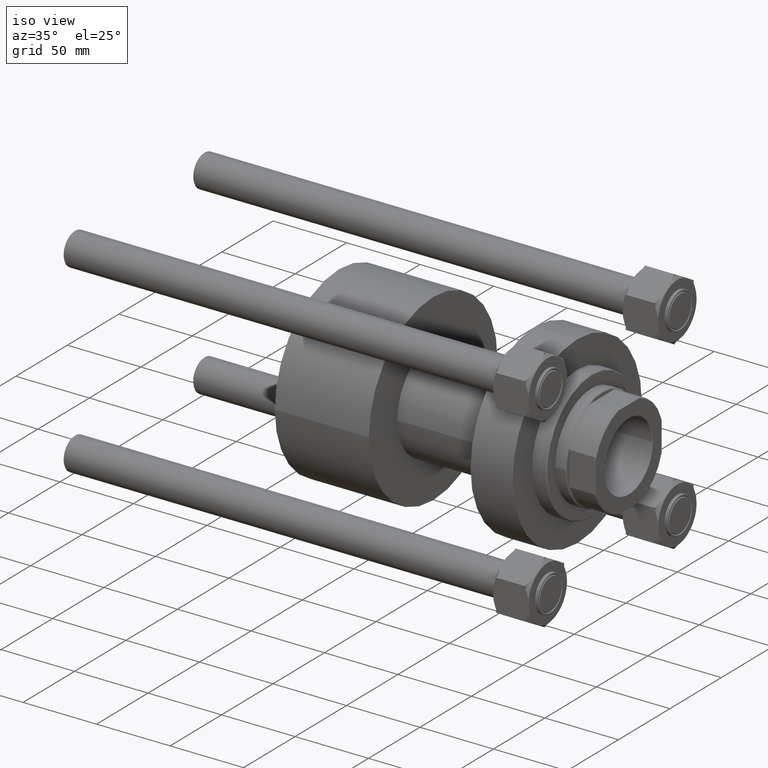
[diagram: clean part render]
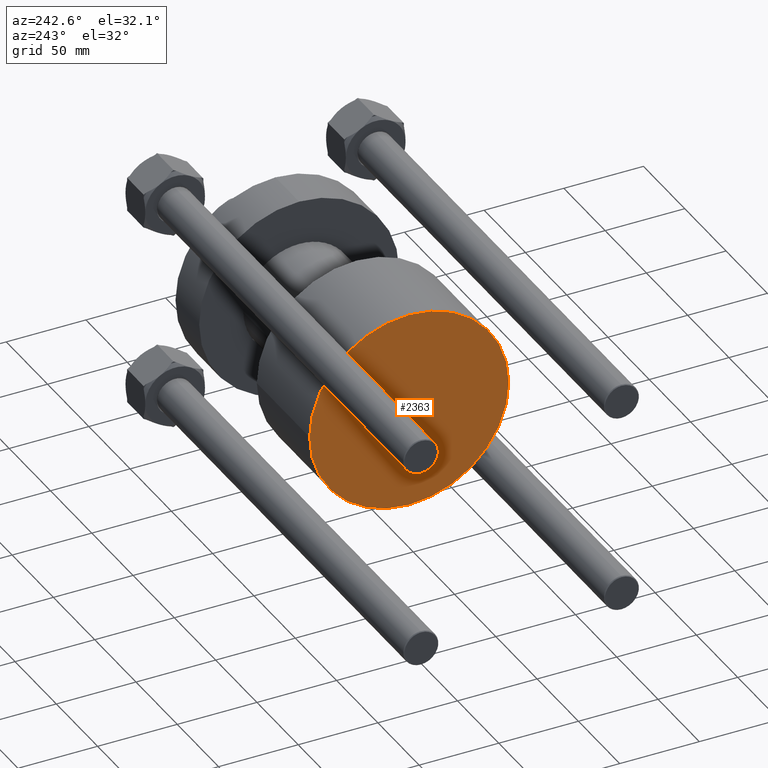
[diagram: tour spotlight — one face highlighted and labeled with its STEP entity id]
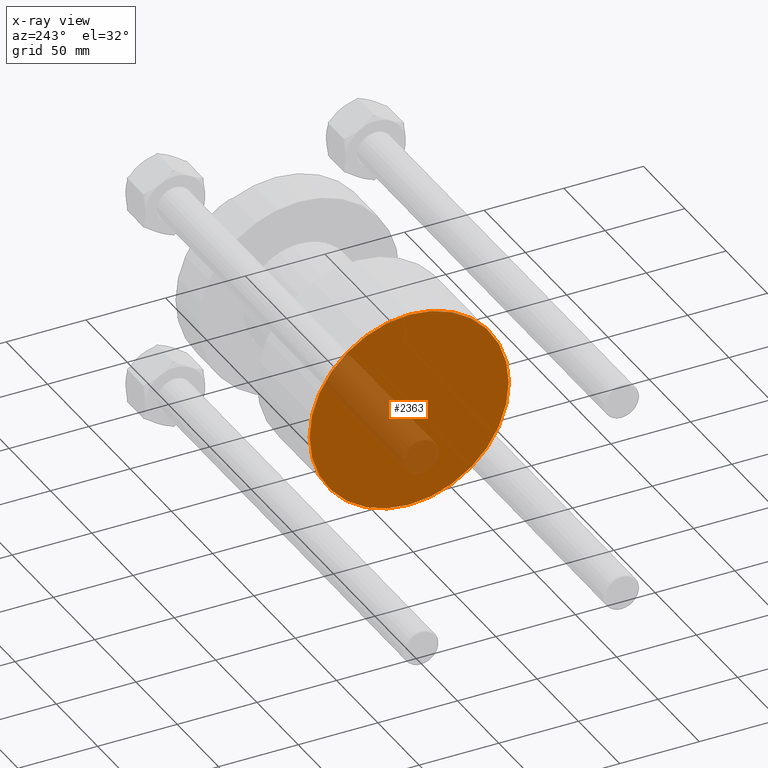
[diagram: x-ray of the same camera — body ghosted, this tour face saturated]
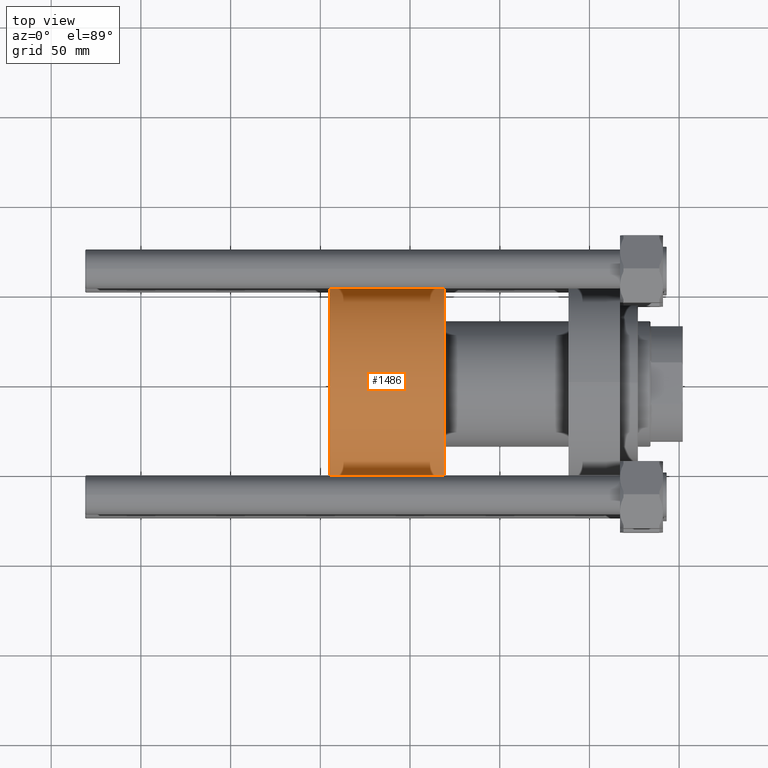
[diagram: tour spotlight — one face highlighted and labeled with its STEP entity id]
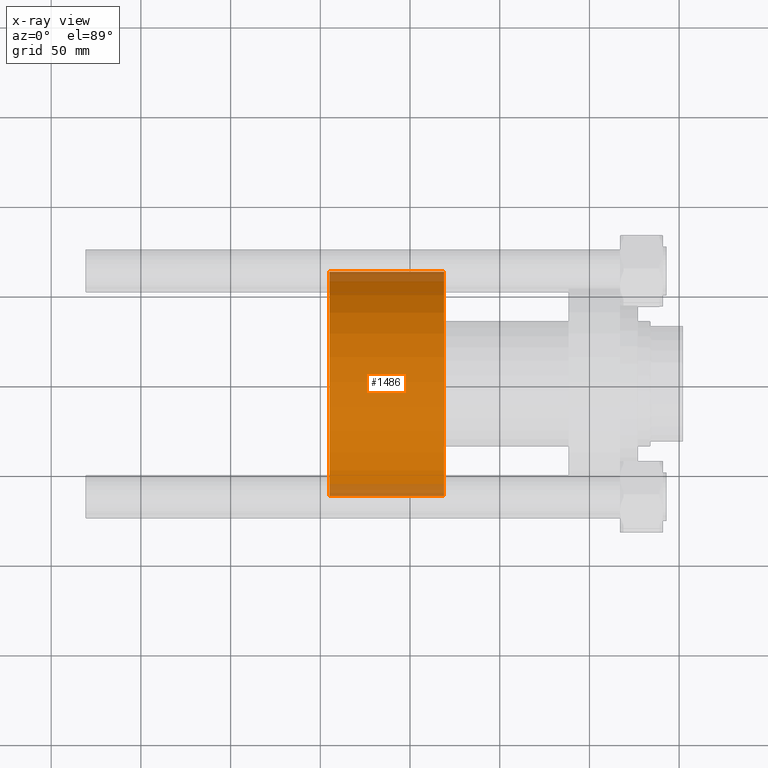
[diagram: x-ray of the same camera — body ghosted, this tour face saturated]
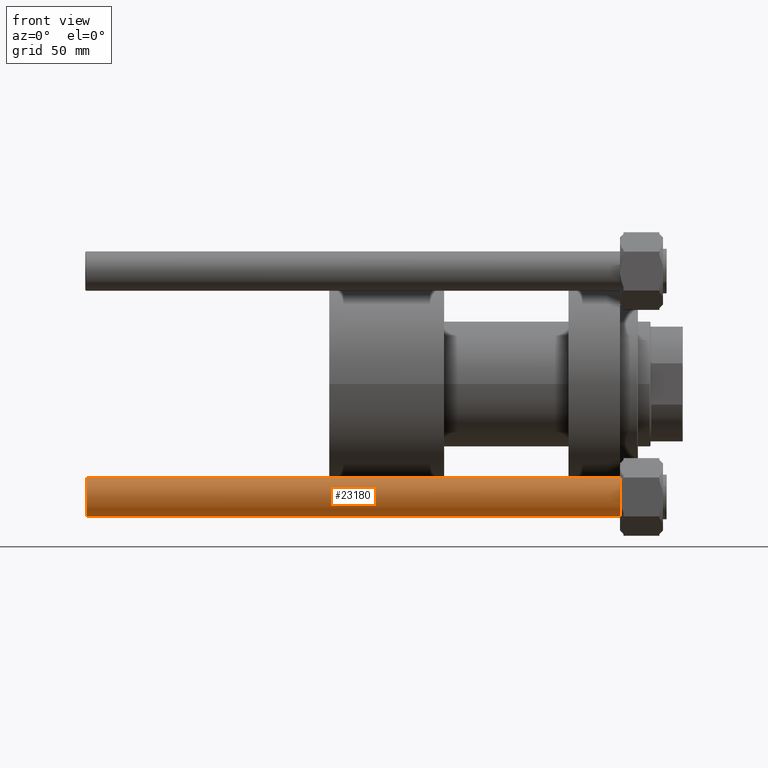
[diagram: tour spotlight — one face highlighted and labeled with its STEP entity id]
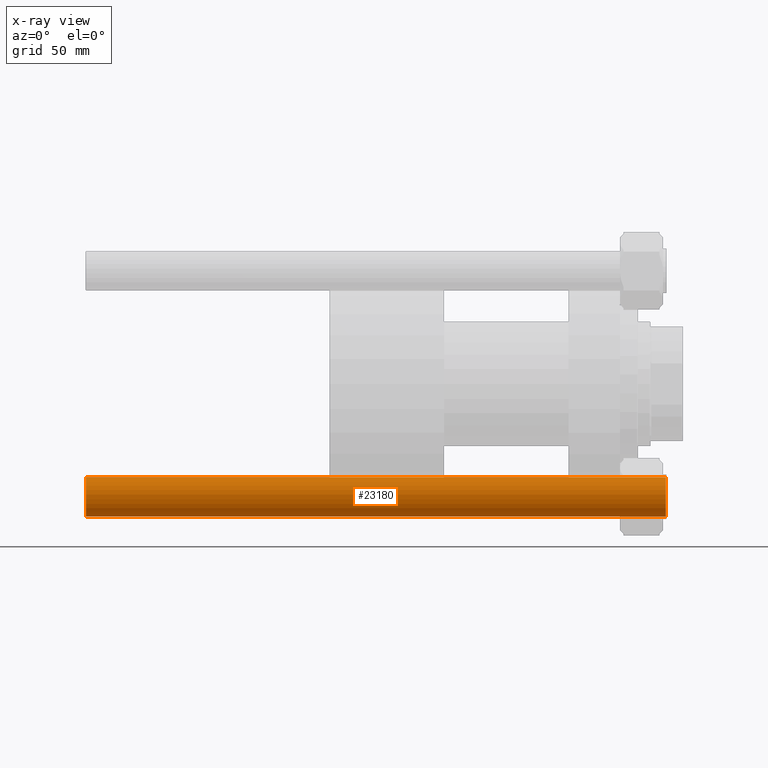
[diagram: x-ray of the same camera — body ghosted, this tour face saturated]
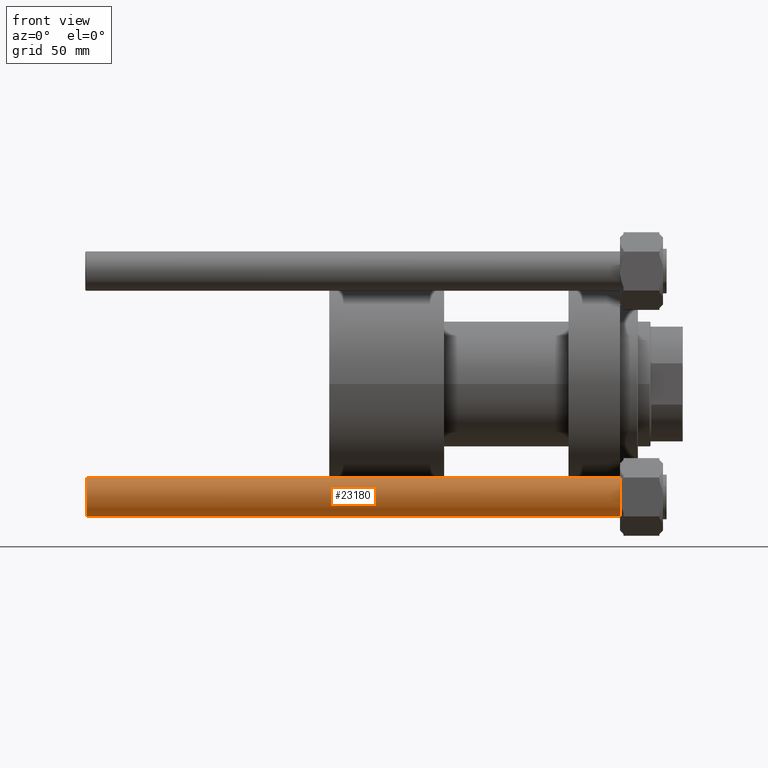
[diagram: tour spotlight — one face highlighted and labeled with its STEP entity id]
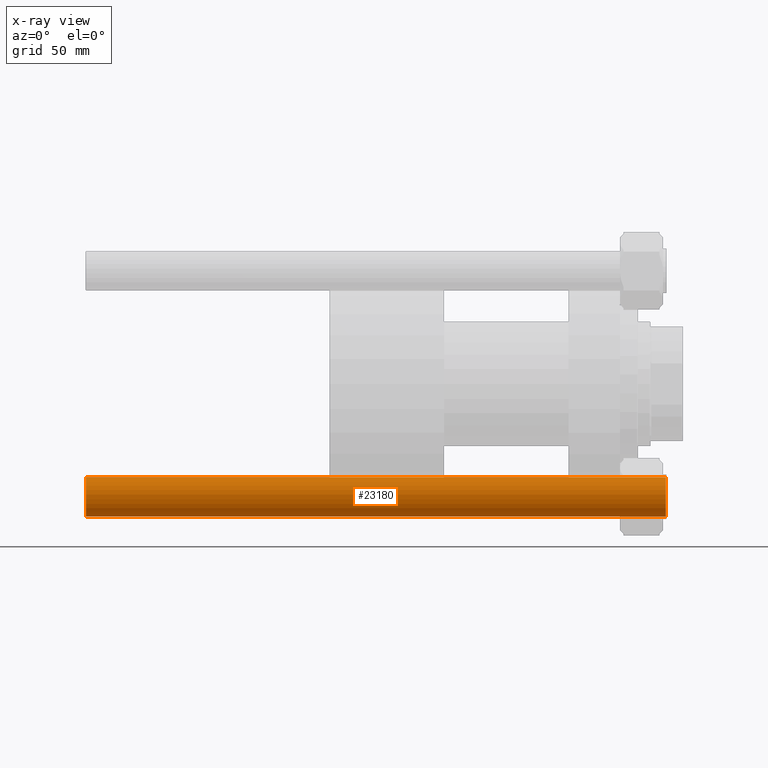
[diagram: x-ray of the same camera — body ghosted, this tour face saturated]
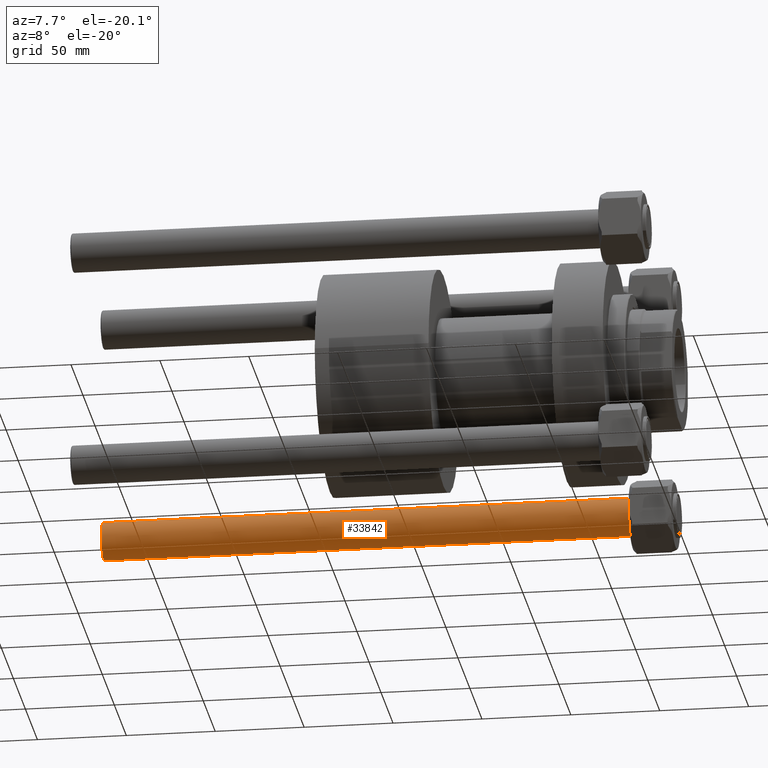
[diagram: tour spotlight — one face highlighted and labeled with its STEP entity id]
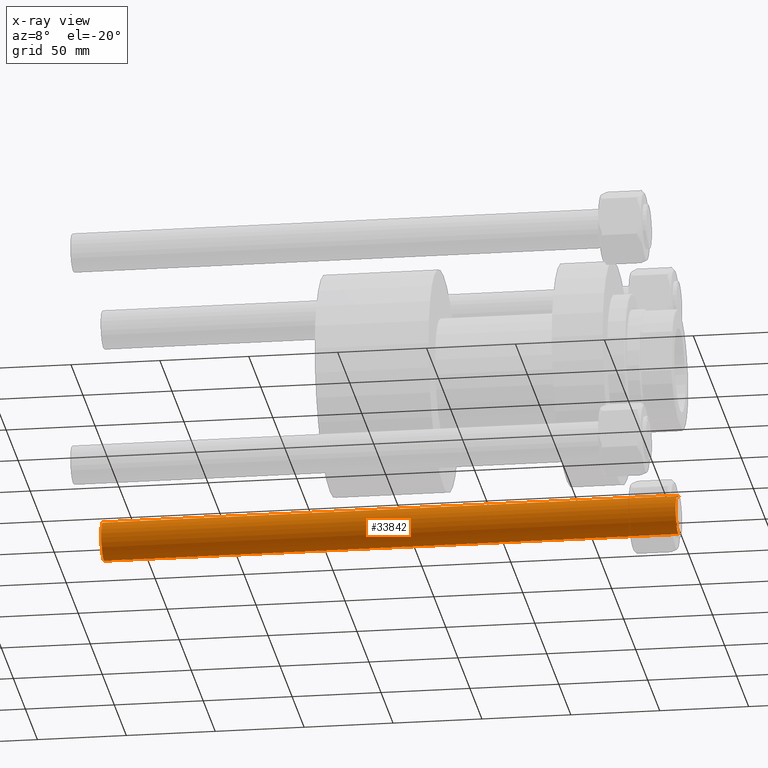
[diagram: x-ray of the same camera — body ghosted, this tour face saturated]
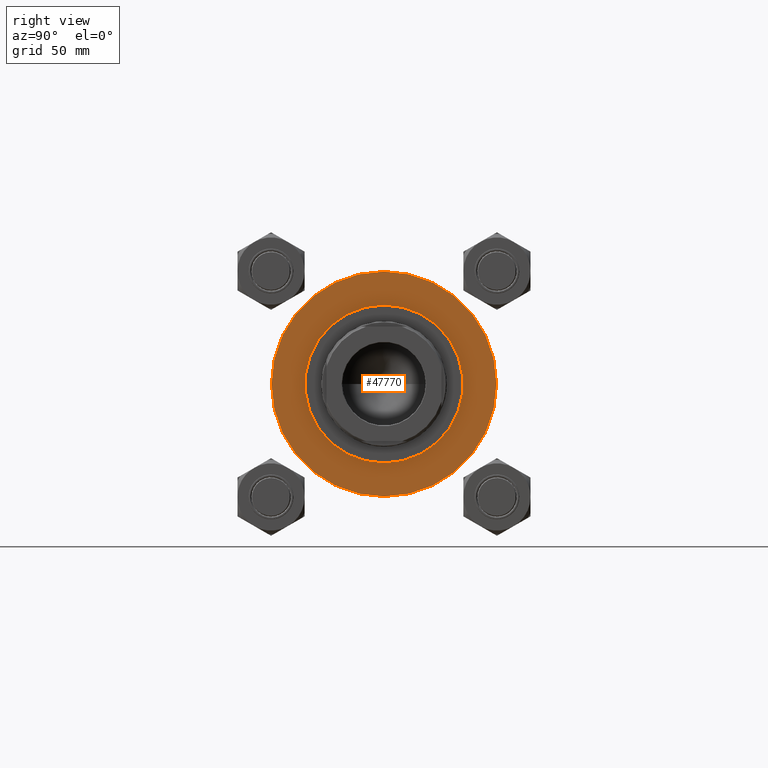
[diagram: tour spotlight — one face highlighted and labeled with its STEP entity id]
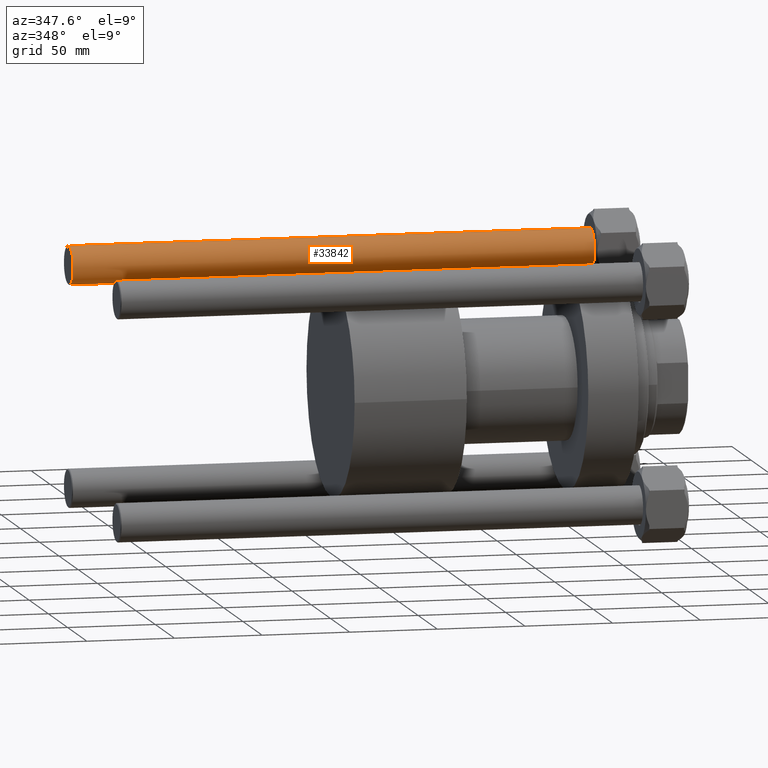
[diagram: tour spotlight — one face highlighted and labeled with its STEP entity id]
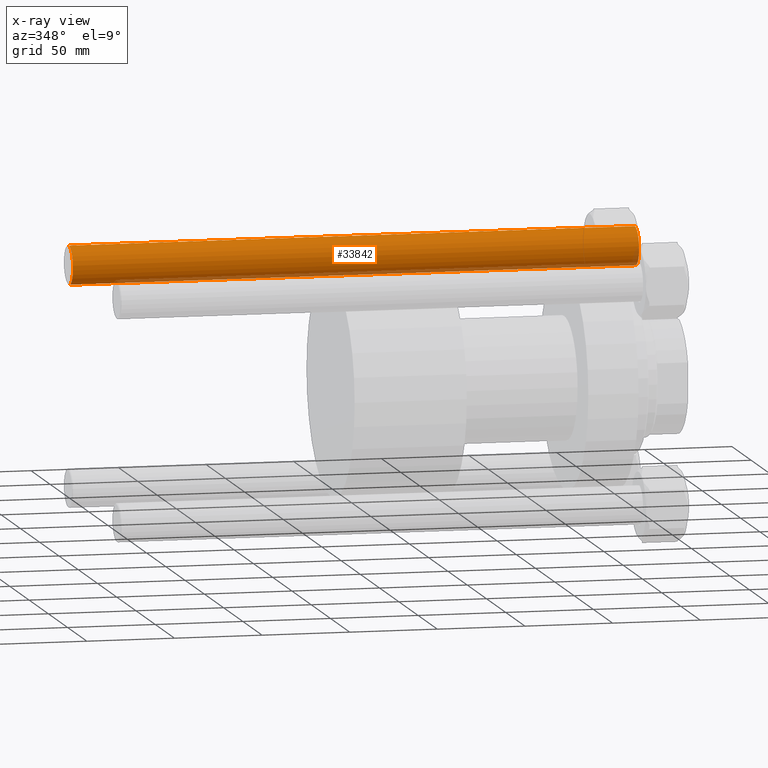
[diagram: x-ray of the same camera — body ghosted, this tour face saturated]
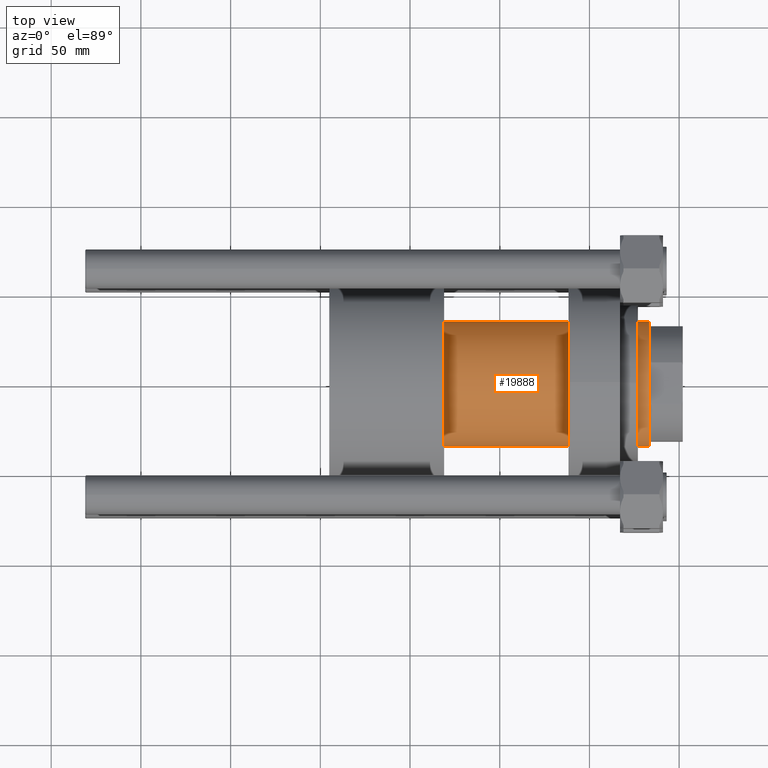
[diagram: tour spotlight — one face highlighted and labeled with its STEP entity id]
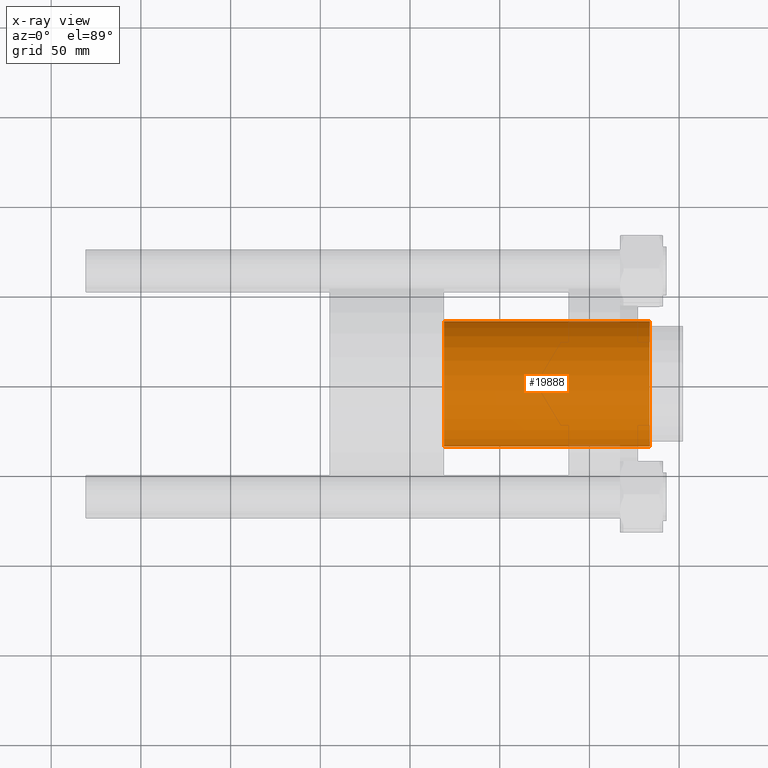
[diagram: x-ray of the same camera — body ghosted, this tour face saturated]
A machine part: a face-by-face anatomy tour. The part has 257 B-rep faces; the first image is the clean iso view, then the 8 largest visible faces are spotlighted one at a time (largest first), each with its STEP entity span.

Face 1 — auxiliary view, entity #2363. An x-ray twin of the same camera follows (body ghosted, this face saturated) — the face is partly hidden behind the body. In plain terms, the highlighted planar face has unit normal (1, 0, -0).
Definition (entity closure, byte-faithful):
#107 = ORIENTED_EDGE ( 'NONE', *, *, #46303, .F. ) ;
#2363 = ADVANCED_FACE ( 'NONE', ( #29940 ), #27900, .F. ) ;
#3160 = AXIS2_PLACEMENT_3D ( 'NONE', #26489, #41731, #22677 ) ;
#3337 = CIRCLE ( 'NONE', #38264, 62.50000000000000000 ) ;
#5008 = EDGE_CURVE ( 'NONE', #48850, #39118, #3337, .T. ) ;
#5529 = CARTESIAN_POINT ( 'NONE',  ( 62.50000000000000000, 7.654042494670957804E-15, 0.000000000000000000 ) ) ;
#21844 = CIRCLE ( 'NONE', #3160, 62.50000000000000000 ) ;
#22677 = DIRECTION ( 'NONE',  ( 1.000000000000000000, 0.000000000000000000, 0.000000000000000000 ) ) ;
#23836 = DIRECTION ( 'NONE',  ( 0.000000000000000000, 0.000000000000000000, 1.000000000000000000 ) ) ;
#24073 = CARTESIAN_POINT ( 'NONE',  ( 0.000000000000000000, 0.000000000000000000, 0.000000000000000000 ) ) ;
#26489 = CARTESIAN_POINT ( 'NONE',  ( 0.000000000000000000, 0.000000000000000000, 0.000000000000000000 ) ) ;
#27900 = PLANE ( 'NONE',  #45457 ) ;
#28057 = CARTESIAN_POINT ( 'NONE',  ( 0.000000000000000000, 0.000000000000000000, 0.000000000000000000 ) ) ;
#29940 = FACE_OUTER_BOUND ( 'NONE', #42200, .T. ) ;
#30062 = DIRECTION ( 'NONE',  ( 1.000000000000000000, 0.000000000000000000, 0.000000000000000000 ) ) ;
#38264 = AXIS2_PLACEMENT_3D ( 'NONE', #28057, #43539, #30062 ) ;
#39118 = VERTEX_POINT ( 'NONE', #5529 ) ;
#41731 = DIRECTION ( 'NONE',  ( 0.000000000000000000, 0.000000000000000000, 1.000000000000000000 ) ) ;
#41838 = CARTESIAN_POINT ( 'NONE',  ( -62.50000000000000000, 0.000000000000000000, 0.000000000000000000 ) ) ;
#42200 = EDGE_LOOP ( 'NONE', ( #48227, #107 ) ) ;
#42882 = DIRECTION ( 'NONE',  ( 1.000000000000000000, 0.000000000000000000, -0.000000000000000000 ) ) ;
#43539 = DIRECTION ( 'NONE',  ( 0.000000000000000000, 0.000000000000000000, 1.000000000000000000 ) ) ;
#45457 = AXIS2_PLACEMENT_3D ( 'NONE', #24073, #23836, #42882 ) ;
#46303 = EDGE_CURVE ( 'NONE', #39118, #48850, #21844, .T. ) ;
#48227 = ORIENTED_EDGE ( 'NONE', *, *, #5008, .F. ) ;
#48850 = VERTEX_POINT ( 'NONE', #41838 ) ;

Face 2 — top view, entity #1486. An x-ray twin of the same camera follows (body ghosted, this face saturated) — the face is partly hidden behind the body. In plain terms, the highlighted cylindrical surface (partial cylindrical patch) has radius 62.5 mm, axis along (-1, 0, 0).
Definition (entity closure, byte-faithful):
#1486 = ADVANCED_FACE ( 'NONE', ( #25493 ), #5653, .T. ) ;
#2285 = VERTEX_POINT ( 'NONE', #49248 ) ;
#3337 = CIRCLE ( 'NONE', #38264, 62.50000000000000000 ) ;
#4597 = CARTESIAN_POINT ( 'NONE',  ( 62.50000000000000000, 7.654042494670957804E-15, 64.00000000000000000 ) ) ;
#5008 = EDGE_CURVE ( 'NONE', #48850, #39118, #3337, .T. ) ;
#5148 = EDGE_LOOP ( 'NONE', ( #46023, #40842, #11603, #24333 ) ) ;
#5529 = CARTESIAN_POINT ( 'NONE',  ( 62.50000000000000000, 7.654042494670957804E-15, 0.000000000000000000 ) ) ;
#5653 = CYLINDRICAL_SURFACE ( 'NONE', #29193, 62.50000000000000000 ) ;
#8427 = LINE ( 'NONE', #4597, #18440 ) ;
#11329 = AXIS2_PLACEMENT_3D ( 'NONE', #36917, #37436, #29031 ) ;
#11603 = ORIENTED_EDGE ( 'NONE', *, *, #26921, .T. ) ;
#11978 = VECTOR ( 'NONE', #21378, 1000.000000000000000 ) ;
#12492 = EDGE_CURVE ( 'NONE', #39055, #39118, #8427, .T. ) ;
#13528 = CARTESIAN_POINT ( 'NONE',  ( 0.000000000000000000, 0.000000000000000000, 64.00000000000000000 ) ) ;
#14602 = CIRCLE ( 'NONE', #11329, 62.50000000000000000 ) ;
#16969 = DIRECTION ( 'NONE',  ( -0.000000000000000000, -0.000000000000000000, -1.000000000000000000 ) ) ;
#17059 = CARTESIAN_POINT ( 'NONE',  ( -62.50000000000000000, 0.000000000000000000, 64.00000000000000000 ) ) ;
#18440 = VECTOR ( 'NONE', #16969, 1000.000000000000000 ) ;
#20312 = CARTESIAN_POINT ( 'NONE',  ( 62.50000000000000000, 7.654042494670957804E-15, 64.00000000000000000 ) ) ;
#21378 = DIRECTION ( 'NONE',  ( -0.000000000000000000, -0.000000000000000000, -1.000000000000000000 ) ) ;
#24333 = ORIENTED_EDGE ( 'NONE', *, *, #5008, .T. ) ;
#25493 = FACE_OUTER_BOUND ( 'NONE', #5148, .T. ) ;
#26921 = EDGE_CURVE ( 'NONE', #2285, #48850, #40450, .T. ) ;
#28057 = CARTESIAN_POINT ( 'NONE',  ( 0.000000000000000000, 0.000000000000000000, 0.000000000000000000 ) ) ;
#29031 = DIRECTION ( 'NONE',  ( 1.000000000000000000, 0.000000000000000000, 0.000000000000000000 ) ) ;
#29047 = DIRECTION ( 'NONE',  ( -0.000000000000000000, -0.000000000000000000, -1.000000000000000000 ) ) ;
#29193 = AXIS2_PLACEMENT_3D ( 'NONE', #13528, #29047, #44540 ) ;
#30062 = DIRECTION ( 'NONE',  ( 1.000000000000000000, 0.000000000000000000, 0.000000000000000000 ) ) ;
#31615 = EDGE_CURVE ( 'NONE', #2285, #39055, #14602, .T. ) ;
#36917 = CARTESIAN_POINT ( 'NONE',  ( 0.000000000000000000, 0.000000000000000000, 64.00000000000000000 ) ) ;
#37436 = DIRECTION ( 'NONE',  ( 0.000000000000000000, 0.000000000000000000, 1.000000000000000000 ) ) ;
#38264 = AXIS2_PLACEMENT_3D ( 'NONE', #28057, #43539, #30062 ) ;
#39055 = VERTEX_POINT ( 'NONE', #20312 ) ;
#39118 = VERTEX_POINT ( 'NONE', #5529 ) ;
#40450 = LINE ( 'NONE', #17059, #11978 ) ;
#40842 = ORIENTED_EDGE ( 'NONE', *, *, #31615, .F. ) ;
#41838 = CARTESIAN_POINT ( 'NONE',  ( -62.50000000000000000, 0.000000000000000000, 0.000000000000000000 ) ) ;
#43539 = DIRECTION ( 'NONE',  ( 0.000000000000000000, 0.000000000000000000, 1.000000000000000000 ) ) ;
#44540 = DIRECTION ( 'NONE',  ( -1.000000000000000000, 0.000000000000000000, 0.000000000000000000 ) ) ;
#46023 = ORIENTED_EDGE ( 'NONE', *, *, #12492, .F. ) ;
#48850 = VERTEX_POINT ( 'NONE', #41838 ) ;
#49248 = CARTESIAN_POINT ( 'NONE',  ( -62.50000000000000000, 0.000000000000000000, 64.00000000000000000 ) ) ;

Face 3 — front view, entity #23180. An x-ray twin of the same camera follows (body ghosted, this face saturated) — the face is partly hidden behind the body. In plain terms, the highlighted cylindrical surface (edge-blend (fillet) strip) has radius 11 mm, axis along (1, -0, 0).
Definition (entity closure, byte-faithful):
#1008 = DIRECTION ( 'NONE',  ( -0.000000000000000000, -0.000000000000000000, 1.000000000000000000 ) ) ;
#1138 = EDGE_CURVE ( 'NONE', #49031, #11271, #41630, .T. ) ;
#1172 = DIRECTION ( 'NONE',  ( -1.000000000000000000, 0.000000000000000000, 0.000000000000000000 ) ) ;
#2385 = EDGE_CURVE ( 'NONE', #49698, #22311, #16676, .T. ) ;
#4022 = VECTOR ( 'NONE', #42386, 1000.000000000000000 ) ;
#4256 = DIRECTION ( 'NONE',  ( -0.000000000000000000, -0.000000000000000000, -1.000000000000000000 ) ) ;
#7233 = AXIS2_PLACEMENT_3D ( 'NONE', #20088, #1008, #35116 ) ;
#7757 = DIRECTION ( 'NONE',  ( 0.000000000000000000, 0.000000000000000000, -1.000000000000000000 ) ) ;
#8257 = CARTESIAN_POINT ( 'NONE',  ( 0.000000000000000000, 0.000000000000000000, 323.5000000000000000 ) ) ;
#11271 = VERTEX_POINT ( 'NONE', #28974 ) ;
#11633 = DIRECTION ( 'NONE',  ( -0.000000000000000000, -0.000000000000000000, -1.000000000000000000 ) ) ;
#11712 = CIRCLE ( 'NONE', #35264, 11.00000000000000000 ) ;
#13468 = CARTESIAN_POINT ( 'NONE',  ( -11.00000000000000000, 0.000000000000000000, 0.5000000000000559552 ) ) ;
#13890 = EDGE_CURVE ( 'NONE', #49698, #49031, #11712, .T. ) ;
#16676 = LINE ( 'NONE', #32195, #21101 ) ;
#17119 = ORIENTED_EDGE ( 'NONE', *, *, #1138, .T. ) ;
#17306 = ORIENTED_EDGE ( 'NONE', *, *, #13890, .T. ) ;
#20088 = CARTESIAN_POINT ( 'NONE',  ( 0.000000000000000000, 0.000000000000000000, 0.5000000000000559552 ) ) ;
#20512 = CYLINDRICAL_SURFACE ( 'NONE', #32164, 11.00000000000000000 ) ;
#21101 = VECTOR ( 'NONE', #11633, 1000.000000000000000 ) ;
#21127 = ORIENTED_EDGE ( 'NONE', *, *, #45595, .T. ) ;
#22311 = VERTEX_POINT ( 'NONE', #13468 ) ;
#23180 = ADVANCED_FACE ( 'NONE', ( #39841 ), #20512, .T. ) ;
#28974 = CARTESIAN_POINT ( 'NONE',  ( 11.00000000000000000, 1.347111479062088405E-15, 0.5000000000000559552 ) ) ;
#29326 = CARTESIAN_POINT ( 'NONE',  ( 11.00000000000000000, 1.347111479062088405E-15, 323.5000000000000000 ) ) ;
#32164 = AXIS2_PLACEMENT_3D ( 'NONE', #36019, #4256, #1172 ) ;
#32195 = CARTESIAN_POINT ( 'NONE',  ( -11.00000000000000000, 0.000000000000000000, 324.0000000000000000 ) ) ;
#32273 = CARTESIAN_POINT ( 'NONE',  ( -11.00000000000000000, 0.000000000000000000, 323.5000000000000000 ) ) ;
#35116 = DIRECTION ( 'NONE',  ( 1.000000000000000000, 0.000000000000000000, 0.000000000000000000 ) ) ;
#35264 = AXIS2_PLACEMENT_3D ( 'NONE', #8257, #7757, #39033 ) ;
#35656 = CIRCLE ( 'NONE', #7233, 11.00000000000000000 ) ;
#36019 = CARTESIAN_POINT ( 'NONE',  ( 0.000000000000000000, 0.000000000000000000, 324.0000000000000000 ) ) ;
#37563 = EDGE_LOOP ( 'NONE', ( #17306, #17119, #21127, #38385 ) ) ;
#38385 = ORIENTED_EDGE ( 'NONE', *, *, #2385, .F. ) ;
#39033 = DIRECTION ( 'NONE',  ( 1.000000000000000000, 0.000000000000000000, 0.000000000000000000 ) ) ;
#39841 = FACE_OUTER_BOUND ( 'NONE', #37563, .T. ) ;
#41630 = LINE ( 'NONE', #49240, #4022 ) ;
#42386 = DIRECTION ( 'NONE',  ( -0.000000000000000000, -0.000000000000000000, -1.000000000000000000 ) ) ;
#45595 = EDGE_CURVE ( 'NONE', #11271, #22311, #35656, .T. ) ;
#49031 = VERTEX_POINT ( 'NONE', #29326 ) ;
#49240 = CARTESIAN_POINT ( 'NONE',  ( 11.00000000000000000, 1.347111479062088405E-15, 324.0000000000000000 ) ) ;
#49698 = VERTEX_POINT ( 'NONE', #32273 ) ;

Face 4 — front view, entity #23180. An x-ray twin of the same camera follows (body ghosted, this face saturated) — the face is partly hidden behind the body. In plain terms, the highlighted cylindrical surface (edge-blend (fillet) strip) has radius 11 mm, axis along (-1, 0, 0).
Definition (entity closure, byte-faithful):
#1008 = DIRECTION ( 'NONE',  ( -0.000000000000000000, -0.000000000000000000, 1.000000000000000000 ) ) ;
#1138 = EDGE_CURVE ( 'NONE', #49031, #11271, #41630, .T. ) ;
#1172 = DIRECTION ( 'NONE',  ( -1.000000000000000000, 0.000000000000000000, 0.000000000000000000 ) ) ;
#2385 = EDGE_CURVE ( 'NONE', #49698, #22311, #16676, .T. ) ;
#4022 = VECTOR ( 'NONE', #42386, 1000.000000000000000 ) ;
#4256 = DIRECTION ( 'NONE',  ( -0.000000000000000000, -0.000000000000000000, -1.000000000000000000 ) ) ;
#7233 = AXIS2_PLACEMENT_3D ( 'NONE', #20088, #1008, #35116 ) ;
#7757 = DIRECTION ( 'NONE',  ( 0.000000000000000000, 0.000000000000000000, -1.000000000000000000 ) ) ;
#8257 = CARTESIAN_POINT ( 'NONE',  ( 0.000000000000000000, 0.000000000000000000, 323.5000000000000000 ) ) ;
#11271 = VERTEX_POINT ( 'NONE', #28974 ) ;
#11633 = DIRECTION ( 'NONE',  ( -0.000000000000000000, -0.000000000000000000, -1.000000000000000000 ) ) ;
#11712 = CIRCLE ( 'NONE', #35264, 11.00000000000000000 ) ;
#13468 = CARTESIAN_POINT ( 'NONE',  ( -11.00000000000000000, 0.000000000000000000, 0.5000000000000559552 ) ) ;
#13890 = EDGE_CURVE ( 'NONE', #49698, #49031, #11712, .T. ) ;
#16676 = LINE ( 'NONE', #32195, #21101 ) ;
#17119 = ORIENTED_EDGE ( 'NONE', *, *, #1138, .T. ) ;
#17306 = ORIENTED_EDGE ( 'NONE', *, *, #13890, .T. ) ;
#20088 = CARTESIAN_POINT ( 'NONE',  ( 0.000000000000000000, 0.000000000000000000, 0.5000000000000559552 ) ) ;
#20512 = CYLINDRICAL_SURFACE ( 'NONE', #32164, 11.00000000000000000 ) ;
#21101 = VECTOR ( 'NONE', #11633, 1000.000000000000000 ) ;
#21127 = ORIENTED_EDGE ( 'NONE', *, *, #45595, .T. ) ;
#22311 = VERTEX_POINT ( 'NONE', #13468 ) ;
#23180 = ADVANCED_FACE ( 'NONE', ( #39841 ), #20512, .T. ) ;
#28974 = CARTESIAN_POINT ( 'NONE',  ( 11.00000000000000000, 1.347111479062088405E-15, 0.5000000000000559552 ) ) ;
#29326 = CARTESIAN_POINT ( 'NONE',  ( 11.00000000000000000, 1.347111479062088405E-15, 323.5000000000000000 ) ) ;
#32164 = AXIS2_PLACEMENT_3D ( 'NONE', #36019, #4256, #1172 ) ;
#32195 = CARTESIAN_POINT ( 'NONE',  ( -11.00000000000000000, 0.000000000000000000, 324.0000000000000000 ) ) ;
#32273 = CARTESIAN_POINT ( 'NONE',  ( -11.00000000000000000, 0.000000000000000000, 323.5000000000000000 ) ) ;
#35116 = DIRECTION ( 'NONE',  ( 1.000000000000000000, 0.000000000000000000, 0.000000000000000000 ) ) ;
#35264 = AXIS2_PLACEMENT_3D ( 'NONE', #8257, #7757, #39033 ) ;
#35656 = CIRCLE ( 'NONE', #7233, 11.00000000000000000 ) ;
#36019 = CARTESIAN_POINT ( 'NONE',  ( 0.000000000000000000, 0.000000000000000000, 324.0000000000000000 ) ) ;
#37563 = EDGE_LOOP ( 'NONE', ( #17306, #17119, #21127, #38385 ) ) ;
#38385 = ORIENTED_EDGE ( 'NONE', *, *, #2385, .F. ) ;
#39033 = DIRECTION ( 'NONE',  ( 1.000000000000000000, 0.000000000000000000, 0.000000000000000000 ) ) ;
#39841 = FACE_OUTER_BOUND ( 'NONE', #37563, .T. ) ;
#41630 = LINE ( 'NONE', #49240, #4022 ) ;
#42386 = DIRECTION ( 'NONE',  ( -0.000000000000000000, -0.000000000000000000, -1.000000000000000000 ) ) ;
#45595 = EDGE_CURVE ( 'NONE', #11271, #22311, #35656, .T. ) ;
#49031 = VERTEX_POINT ( 'NONE', #29326 ) ;
#49240 = CARTESIAN_POINT ( 'NONE',  ( 11.00000000000000000, 1.347111479062088405E-15, 324.0000000000000000 ) ) ;
#49698 = VERTEX_POINT ( 'NONE', #32273 ) ;

Face 5 — auxiliary view, entity #33842. An x-ray twin of the same camera follows (body ghosted, this face saturated) — the face is partly hidden behind the body. In plain terms, the highlighted cylindrical surface (edge-blend (fillet) strip) has radius 11 mm, axis along (1, 0, -0).
Definition (entity closure, byte-faithful):
#1138 = EDGE_CURVE ( 'NONE', #49031, #11271, #41630, .T. ) ;
#2385 = EDGE_CURVE ( 'NONE', #49698, #22311, #16676, .T. ) ;
#4022 = VECTOR ( 'NONE', #42386, 1000.000000000000000 ) ;
#4146 = DIRECTION ( 'NONE',  ( 1.000000000000000000, 0.000000000000000000, 0.000000000000000000 ) ) ;
#6423 = CARTESIAN_POINT ( 'NONE',  ( 0.000000000000000000, 0.000000000000000000, 323.5000000000000000 ) ) ;
#11271 = VERTEX_POINT ( 'NONE', #28974 ) ;
#11633 = DIRECTION ( 'NONE',  ( -0.000000000000000000, -0.000000000000000000, -1.000000000000000000 ) ) ;
#12903 = AXIS2_PLACEMENT_3D ( 'NONE', #42056, #49939, #15119 ) ;
#13468 = CARTESIAN_POINT ( 'NONE',  ( -11.00000000000000000, 0.000000000000000000, 0.5000000000000559552 ) ) ;
#13540 = DIRECTION ( 'NONE',  ( 0.000000000000000000, 0.000000000000000000, -1.000000000000000000 ) ) ;
#15119 = DIRECTION ( 'NONE',  ( -1.000000000000000000, 0.000000000000000000, 0.000000000000000000 ) ) ;
#16676 = LINE ( 'NONE', #32195, #21101 ) ;
#18559 = AXIS2_PLACEMENT_3D ( 'NONE', #47343, #43522, #4146 ) ;
#21101 = VECTOR ( 'NONE', #11633, 1000.000000000000000 ) ;
#22311 = VERTEX_POINT ( 'NONE', #13468 ) ;
#23529 = ORIENTED_EDGE ( 'NONE', *, *, #1138, .F. ) ;
#28974 = CARTESIAN_POINT ( 'NONE',  ( 11.00000000000000000, 1.347111479062088405E-15, 0.5000000000000559552 ) ) ;
#29318 = DIRECTION ( 'NONE',  ( 1.000000000000000000, 0.000000000000000000, 0.000000000000000000 ) ) ;
#29326 = CARTESIAN_POINT ( 'NONE',  ( 11.00000000000000000, 1.347111479062088405E-15, 323.5000000000000000 ) ) ;
#29846 = AXIS2_PLACEMENT_3D ( 'NONE', #6423, #13540, #29318 ) ;
#32195 = CARTESIAN_POINT ( 'NONE',  ( -11.00000000000000000, 0.000000000000000000, 324.0000000000000000 ) ) ;
#32273 = CARTESIAN_POINT ( 'NONE',  ( -11.00000000000000000, 0.000000000000000000, 323.5000000000000000 ) ) ;
#33842 = ADVANCED_FACE ( 'NONE', ( #38015 ), #50183, .T. ) ;
#34787 = CIRCLE ( 'NONE', #18559, 11.00000000000000000 ) ;
#35155 = EDGE_LOOP ( 'NONE', ( #23529, #44065, #37127, #47528 ) ) ;
#37127 = ORIENTED_EDGE ( 'NONE', *, *, #2385, .T. ) ;
#38015 = FACE_OUTER_BOUND ( 'NONE', #35155, .T. ) ;
#38783 = CIRCLE ( 'NONE', #29846, 11.00000000000000000 ) ;
#41630 = LINE ( 'NONE', #49240, #4022 ) ;
#42056 = CARTESIAN_POINT ( 'NONE',  ( 0.000000000000000000, 0.000000000000000000, 324.0000000000000000 ) ) ;
#42386 = DIRECTION ( 'NONE',  ( -0.000000000000000000, -0.000000000000000000, -1.000000000000000000 ) ) ;
#43092 = EDGE_CURVE ( 'NONE', #49031, #49698, #38783, .T. ) ;
#43522 = DIRECTION ( 'NONE',  ( -0.000000000000000000, -0.000000000000000000, 1.000000000000000000 ) ) ;
#44065 = ORIENTED_EDGE ( 'NONE', *, *, #43092, .T. ) ;
#45292 = EDGE_CURVE ( 'NONE', #22311, #11271, #34787, .T. ) ;
#47343 = CARTESIAN_POINT ( 'NONE',  ( 0.000000000000000000, 0.000000000000000000, 0.5000000000000559552 ) ) ;
#47528 = ORIENTED_EDGE ( 'NONE', *, *, #45292, .T. ) ;
#49031 = VERTEX_POINT ( 'NONE', #29326 ) ;
#49240 = CARTESIAN_POINT ( 'NONE',  ( 11.00000000000000000, 1.347111479062088405E-15, 324.0000000000000000 ) ) ;
#49698 = VERTEX_POINT ( 'NONE', #32273 ) ;
#49939 = DIRECTION ( 'NONE',  ( -0.000000000000000000, -0.000000000000000000, -1.000000000000000000 ) ) ;
#50183 = CYLINDRICAL_SURFACE ( 'NONE', #12903, 11.00000000000000000 ) ;

Face 6 — right view, entity #47770. In plain terms, the highlighted planar face has unit normal (1, 0, -0).
Definition (entity closure, byte-faithful):
#218 = DIRECTION ( 'NONE',  ( 1.000000000000000000, 0.000000000000000000, 0.000000000000000000 ) ) ;
#413 = DIRECTION ( 'NONE',  ( 1.000000000000000000, 0.000000000000000000, 0.000000000000000000 ) ) ;
#647 = AXIS2_PLACEMENT_3D ( 'NONE', #43506, #13000, #20385 ) ;
#2652 = ORIENTED_EDGE ( 'NONE', *, *, #43194, .F. ) ;
#4696 = EDGE_LOOP ( 'NONE', ( #30649, #2652 ) ) ;
#5223 = DIRECTION ( 'NONE',  ( 1.000000000000000000, 0.000000000000000000, -0.000000000000000000 ) ) ;
#5721 = PLANE ( 'NONE',  #13778 ) ;
#7464 = CARTESIAN_POINT ( 'NONE',  ( -44.00000000000000000, 0.000000000000000000, 28.69999999999999929 ) ) ;
#9677 = CIRCLE ( 'NONE', #16183, 44.00000000000000000 ) ;
#10599 = DIRECTION ( 'NONE',  ( 1.000000000000000000, 0.000000000000000000, 0.000000000000000000 ) ) ;
#11087 = VERTEX_POINT ( 'NONE', #7464 ) ;
#11287 = AXIS2_PLACEMENT_3D ( 'NONE', #23128, #45993, #218 ) ;
#13000 = DIRECTION ( 'NONE',  ( 0.000000000000000000, 0.000000000000000000, 1.000000000000000000 ) ) ;
#13778 = AXIS2_PLACEMENT_3D ( 'NONE', #37006, #29117, #5223 ) ;
#15075 = VERTEX_POINT ( 'NONE', #41230 ) ;
#15202 = EDGE_LOOP ( 'NONE', ( #24465, #34559 ) ) ;
#16183 = AXIS2_PLACEMENT_3D ( 'NONE', #30701, #50010, #413 ) ;
#20286 = CIRCLE ( 'NONE', #29092, 62.75000000000000000 ) ;
#20385 = DIRECTION ( 'NONE',  ( 1.000000000000000000, 0.000000000000000000, 0.000000000000000000 ) ) ;
#23128 = CARTESIAN_POINT ( 'NONE',  ( 0.000000000000000000, 0.000000000000000000, 28.69999999999999929 ) ) ;
#24221 = CIRCLE ( 'NONE', #647, 44.00000000000000000 ) ;
#24465 = ORIENTED_EDGE ( 'NONE', *, *, #33623, .T. ) ;
#28326 = VERTEX_POINT ( 'NONE', #46810 ) ;
#28871 = FACE_OUTER_BOUND ( 'NONE', #15202, .T. ) ;
#29092 = AXIS2_PLACEMENT_3D ( 'NONE', #29920, #33492, #10599 ) ;
#29117 = DIRECTION ( 'NONE',  ( 0.000000000000000000, 0.000000000000000000, 1.000000000000000000 ) ) ;
#29920 = CARTESIAN_POINT ( 'NONE',  ( 0.000000000000000000, 0.000000000000000000, 28.69999999999999929 ) ) ;
#30649 = ORIENTED_EDGE ( 'NONE', *, *, #34870, .F. ) ;
#30701 = CARTESIAN_POINT ( 'NONE',  ( 0.000000000000000000, 0.000000000000000000, 28.69999999999999929 ) ) ;
#32390 = EDGE_CURVE ( 'NONE', #15075, #43269, #20286, .T. ) ;
#32691 = FACE_BOUND ( 'NONE', #4696, .T. ) ;
#33492 = DIRECTION ( 'NONE',  ( 0.000000000000000000, 0.000000000000000000, 1.000000000000000000 ) ) ;
#33623 = EDGE_CURVE ( 'NONE', #43269, #15075, #44534, .T. ) ;
#34559 = ORIENTED_EDGE ( 'NONE', *, *, #32390, .T. ) ;
#34870 = EDGE_CURVE ( 'NONE', #11087, #28326, #9677, .T. ) ;
#37006 = CARTESIAN_POINT ( 'NONE',  ( 0.000000000000000000, 0.000000000000000000, 28.69999999999999929 ) ) ;
#39230 = CARTESIAN_POINT ( 'NONE',  ( -62.75000000000000000, 0.000000000000000000, 28.69999999999999929 ) ) ;
#41230 = CARTESIAN_POINT ( 'NONE',  ( 62.75000000000000000, 7.684658664649641591E-15, 28.69999999999999929 ) ) ;
#43194 = EDGE_CURVE ( 'NONE', #28326, #11087, #24221, .T. ) ;
#43269 = VERTEX_POINT ( 'NONE', #39230 ) ;
#43506 = CARTESIAN_POINT ( 'NONE',  ( 0.000000000000000000, 0.000000000000000000, 28.69999999999999929 ) ) ;
#44534 = CIRCLE ( 'NONE', #11287, 62.75000000000000000 ) ;
#45993 = DIRECTION ( 'NONE',  ( 0.000000000000000000, 0.000000000000000000, 1.000000000000000000 ) ) ;
#46810 = CARTESIAN_POINT ( 'NONE',  ( 44.00000000000000000, 5.388445916248353619E-15, 28.69999999999999929 ) ) ;
#47770 = ADVANCED_FACE ( 'NONE', ( #32691, #28871 ), #5721, .T. ) ;
#50010 = DIRECTION ( 'NONE',  ( 0.000000000000000000, 0.000000000000000000, 1.000000000000000000 ) ) ;

Face 7 — auxiliary view, entity #33842. An x-ray twin of the same camera follows (body ghosted, this face saturated) — the face is partly hidden behind the body. In plain terms, the highlighted cylindrical surface (edge-blend (fillet) strip) has radius 11 mm, axis along (-1, -0, -0).
Definition (entity closure, byte-faithful):
#1138 = EDGE_CURVE ( 'NONE', #49031, #11271, #41630, .T. ) ;
#2385 = EDGE_CURVE ( 'NONE', #49698, #22311, #16676, .T. ) ;
#4022 = VECTOR ( 'NONE', #42386, 1000.000000000000000 ) ;
#4146 = DIRECTION ( 'NONE',  ( 1.000000000000000000, 0.000000000000000000, 0.000000000000000000 ) ) ;
#6423 = CARTESIAN_POINT ( 'NONE',  ( 0.000000000000000000, 0.000000000000000000, 323.5000000000000000 ) ) ;
#11271 = VERTEX_POINT ( 'NONE', #28974 ) ;
#11633 = DIRECTION ( 'NONE',  ( -0.000000000000000000, -0.000000000000000000, -1.000000000000000000 ) ) ;
#12903 = AXIS2_PLACEMENT_3D ( 'NONE', #42056, #49939, #15119 ) ;
#13468 = CARTESIAN_POINT ( 'NONE',  ( -11.00000000000000000, 0.000000000000000000, 0.5000000000000559552 ) ) ;
#13540 = DIRECTION ( 'NONE',  ( 0.000000000000000000, 0.000000000000000000, -1.000000000000000000 ) ) ;
#15119 = DIRECTION ( 'NONE',  ( -1.000000000000000000, 0.000000000000000000, 0.000000000000000000 ) ) ;
#16676 = LINE ( 'NONE', #32195, #21101 ) ;
#18559 = AXIS2_PLACEMENT_3D ( 'NONE', #47343, #43522, #4146 ) ;
#21101 = VECTOR ( 'NONE', #11633, 1000.000000000000000 ) ;
#22311 = VERTEX_POINT ( 'NONE', #13468 ) ;
#23529 = ORIENTED_EDGE ( 'NONE', *, *, #1138, .F. ) ;
#28974 = CARTESIAN_POINT ( 'NONE',  ( 11.00000000000000000, 1.347111479062088405E-15, 0.5000000000000559552 ) ) ;
#29318 = DIRECTION ( 'NONE',  ( 1.000000000000000000, 0.000000000000000000, 0.000000000000000000 ) ) ;
#29326 = CARTESIAN_POINT ( 'NONE',  ( 11.00000000000000000, 1.347111479062088405E-15, 323.5000000000000000 ) ) ;
#29846 = AXIS2_PLACEMENT_3D ( 'NONE', #6423, #13540, #29318 ) ;
#32195 = CARTESIAN_POINT ( 'NONE',  ( -11.00000000000000000, 0.000000000000000000, 324.0000000000000000 ) ) ;
#32273 = CARTESIAN_POINT ( 'NONE',  ( -11.00000000000000000, 0.000000000000000000, 323.5000000000000000 ) ) ;
#33842 = ADVANCED_FACE ( 'NONE', ( #38015 ), #50183, .T. ) ;
#34787 = CIRCLE ( 'NONE', #18559, 11.00000000000000000 ) ;
#35155 = EDGE_LOOP ( 'NONE', ( #23529, #44065, #37127, #47528 ) ) ;
#37127 = ORIENTED_EDGE ( 'NONE', *, *, #2385, .T. ) ;
#38015 = FACE_OUTER_BOUND ( 'NONE', #35155, .T. ) ;
#38783 = CIRCLE ( 'NONE', #29846, 11.00000000000000000 ) ;
#41630 = LINE ( 'NONE', #49240, #4022 ) ;
#42056 = CARTESIAN_POINT ( 'NONE',  ( 0.000000000000000000, 0.000000000000000000, 324.0000000000000000 ) ) ;
#42386 = DIRECTION ( 'NONE',  ( -0.000000000000000000, -0.000000000000000000, -1.000000000000000000 ) ) ;
#43092 = EDGE_CURVE ( 'NONE', #49031, #49698, #38783, .T. ) ;
#43522 = DIRECTION ( 'NONE',  ( -0.000000000000000000, -0.000000000000000000, 1.000000000000000000 ) ) ;
#44065 = ORIENTED_EDGE ( 'NONE', *, *, #43092, .T. ) ;
#45292 = EDGE_CURVE ( 'NONE', #22311, #11271, #34787, .T. ) ;
#47343 = CARTESIAN_POINT ( 'NONE',  ( 0.000000000000000000, 0.000000000000000000, 0.5000000000000559552 ) ) ;
#47528 = ORIENTED_EDGE ( 'NONE', *, *, #45292, .T. ) ;
#49031 = VERTEX_POINT ( 'NONE', #29326 ) ;
#49240 = CARTESIAN_POINT ( 'NONE',  ( 11.00000000000000000, 1.347111479062088405E-15, 324.0000000000000000 ) ) ;
#49698 = VERTEX_POINT ( 'NONE', #32273 ) ;
#49939 = DIRECTION ( 'NONE',  ( -0.000000000000000000, -0.000000000000000000, -1.000000000000000000 ) ) ;
#50183 = CYLINDRICAL_SURFACE ( 'NONE', #12903, 11.00000000000000000 ) ;

Face 8 — top view, entity #19888. An x-ray twin of the same camera follows (body ghosted, this face saturated) — the face is partly hidden behind the body. In plain terms, the highlighted cylindrical surface (partial cylindrical patch) has radius 35 mm, axis along (-1, 0, 0).
Definition (entity closure, byte-faithful):
#1818 = VECTOR ( 'NONE', #28015, 1000.000000000000000 ) ;
#2010 = AXIS2_PLACEMENT_3D ( 'NONE', #23003, #3659, #15356 ) ;
#2953 = ORIENTED_EDGE ( 'NONE', *, *, #29431, .T. ) ;
#3659 = DIRECTION ( 'NONE',  ( -0.000000000000000000, -0.000000000000000000, -1.000000000000000000 ) ) ;
#7158 = CIRCLE ( 'NONE', #49351, 35.00000000000000711 ) ;
#7484 = FACE_OUTER_BOUND ( 'NONE', #14259, .T. ) ;
#9275 = EDGE_CURVE ( 'NONE', #14675, #33804, #47559, .T. ) ;
#9601 = CIRCLE ( 'NONE', #22672, 35.00000000000000711 ) ;
#14259 = EDGE_LOOP ( 'NONE', ( #26134, #2953, #23554, #38886 ) ) ;
#14675 = VERTEX_POINT ( 'NONE', #33932 ) ;
#15356 = DIRECTION ( 'NONE',  ( -1.000000000000000000, 0.000000000000000000, 0.000000000000000000 ) ) ;
#19079 = CARTESIAN_POINT ( 'NONE',  ( 0.000000000000000000, 0.000000000000000000, 64.00000000000000000 ) ) ;
#19827 = DIRECTION ( 'NONE',  ( 1.000000000000000000, 0.000000000000000000, 0.000000000000000000 ) ) ;
#19888 = ADVANCED_FACE ( 'NONE', ( #7484 ), #50173, .T. ) ;
#21851 = DIRECTION ( 'NONE',  ( -0.000000000000000000, -0.000000000000000000, -1.000000000000000000 ) ) ;
#22672 = AXIS2_PLACEMENT_3D ( 'NONE', #47502, #32256, #39641 ) ;
#23003 = CARTESIAN_POINT ( 'NONE',  ( 0.000000000000000000, 0.000000000000000000, 179.0000000000000000 ) ) ;
#23554 = ORIENTED_EDGE ( 'NONE', *, *, #36486, .T. ) ;
#23950 = CARTESIAN_POINT ( 'NONE',  ( 35.00000000000000711, 4.286263797015737285E-15, 179.0000000000000000 ) ) ;
#26134 = ORIENTED_EDGE ( 'NONE', *, *, #9275, .F. ) ;
#26192 = LINE ( 'NONE', #29488, #35752 ) ;
#27098 = EDGE_CURVE ( 'NONE', #48966, #33804, #7158, .T. ) ;
#27465 = DIRECTION ( 'NONE',  ( 0.000000000000000000, 0.000000000000000000, 1.000000000000000000 ) ) ;
#28015 = DIRECTION ( 'NONE',  ( -0.000000000000000000, -0.000000000000000000, -1.000000000000000000 ) ) ;
#29431 = EDGE_CURVE ( 'NONE', #14675, #34788, #9601, .T. ) ;
#29488 = CARTESIAN_POINT ( 'NONE',  ( -35.00000000000000711, 0.000000000000000000, 179.0000000000000000 ) ) ;
#32256 = DIRECTION ( 'NONE',  ( 0.000000000000000000, 0.000000000000000000, -1.000000000000000000 ) ) ;
#33804 = VERTEX_POINT ( 'NONE', #37516 ) ;
#33932 = CARTESIAN_POINT ( 'NONE',  ( 35.00000000000000711, 4.286263797015737285E-15, 178.5000000000000284 ) ) ;
#34788 = VERTEX_POINT ( 'NONE', #44924 ) ;
#35716 = CARTESIAN_POINT ( 'NONE',  ( -35.00000000000000711, 0.000000000000000000, 64.00000000000000000 ) ) ;
#35752 = VECTOR ( 'NONE', #21851, 1000.000000000000000 ) ;
#36486 = EDGE_CURVE ( 'NONE', #34788, #48966, #26192, .T. ) ;
#37516 = CARTESIAN_POINT ( 'NONE',  ( 35.00000000000000711, 4.286263797015737285E-15, 64.00000000000000000 ) ) ;
#38886 = ORIENTED_EDGE ( 'NONE', *, *, #27098, .T. ) ;
#39641 = DIRECTION ( 'NONE',  ( 1.000000000000000000, 0.000000000000000000, 0.000000000000000000 ) ) ;
#44924 = CARTESIAN_POINT ( 'NONE',  ( -35.00000000000000711, 0.000000000000000000, 178.5000000000000284 ) ) ;
#47502 = CARTESIAN_POINT ( 'NONE',  ( 0.000000000000000000, 0.000000000000000000, 178.5000000000000284 ) ) ;
#47559 = LINE ( 'NONE', #23950, #1818 ) ;
#48966 = VERTEX_POINT ( 'NONE', #35716 ) ;
#49351 = AXIS2_PLACEMENT_3D ( 'NONE', #19079, #27465, #19827 ) ;
#50173 = CYLINDRICAL_SURFACE ( 'NONE', #2010, 35.00000000000000711 ) ;